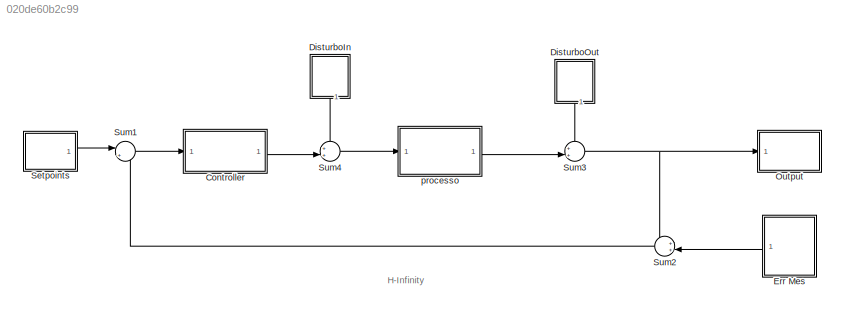
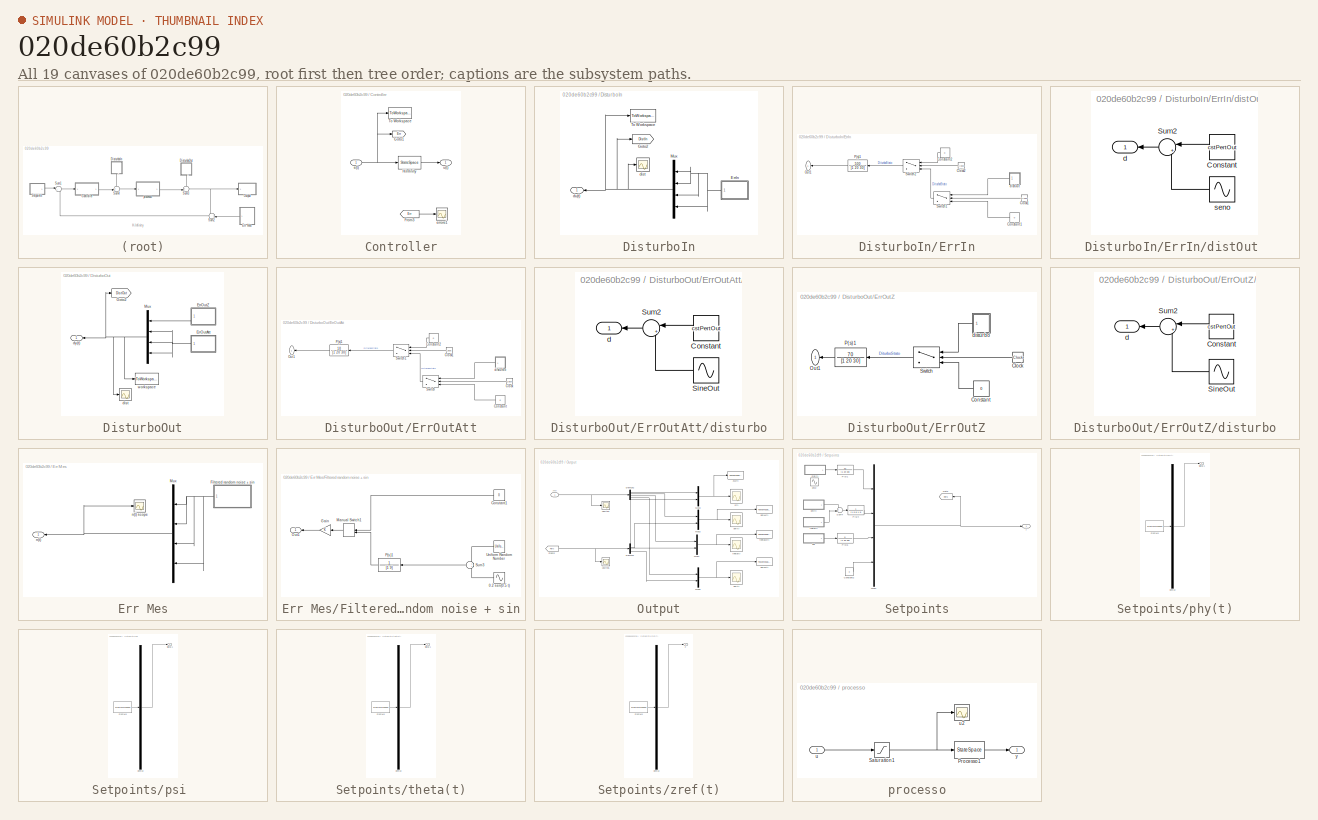
[diagram: thumbnail index - all 19 canvases of the model, root first then tree order]
MODEL slx_020de60b2c99
KIND model
CONFIG AbsTol = auto
CONFIG EnableMultiTasking = on
CONFIG FixedStep = auto
CONFIG MaxStep = auto
CONFIG MinStep = auto
CONFIG RelTol = 1e-3
CONFIG SampleTimeConstraint = Unconstrained
CONFIG Solver = ode23
CONFIG SolverName = ode23
CONFIG StartTime = 0.0
CONFIG StopTime = 15
BLOCK [SubSystem] Controller
  Ports = [1, 1]
  RequestExecContextInheritance = off
  Variant = off
BLOCK [From] Controller/From3
  GotoTag = Err
  TagVisibility = global
BLOCK [Goto] Controller/Goto1
  GotoTag = Err
  TagVisibility = global
BLOCK [StateSpace] Controller/H-Infinity
  A = Kinf.a
  B = Kinf.b
  C = Kinf.c
  D = Kinf.d
  Ports = [1, 1]
  X0 = 0
BLOCK [ToWorkspace] Controller/To Workspace
  MaxDataPoints = inf
  Ports = [1]
  SampleTime = -1
  SaveFormat = Structure
  VariableName = errSim
BLOCK [Inport] Controller/e(t)
  IconDisplay = Port number
BLOCK [Scope] Controller/errore1
  NumInputPorts = 1
  Ports = [1]
  ScopeSpecificationString = C++SS(StrPVP('Location','[66, 91, 1066, 623]'),StrPVP('Open','off'),StrPVP('ZoomMode','xonly'),MxPVP('AxesTitles',53,'struct(''axes1'',''%<SignalLabel>'')'),MxPVP('ScopeGraphics',56,'struct(''FigureColor'',''[0.5 0.5 0.5]'',''AxesColor'',''[0 0 0]'',''AxesTickColor'',''[1 1 1]'',''LineColors'',''[1 1 0;1 0 1;0 1 1;1 0 0;0 1 0;0 0 1]'',''LineStyles'',''-|-|-|-|-|-'',''LineWidths'',''[0.5 0.5 0.5 0....<+337ch>
BLOCK [Outport] Controller/u(t)
  IconDisplay = Port number
BLOCK [SubSystem] DisturboIn
  Ports = [0, 1]
  RequestExecContextInheritance = off
  Variant = off
BLOCK [SubSystem] DisturboIn/ErrIn
  Ports = [0, 1]
  RequestExecContextInheritance = off
  Variant = off
BLOCK [Clock] DisturboIn/ErrIn/Clock1
BLOCK [Clock] DisturboIn/ErrIn/Clock2
BLOCK [Constant] DisturboIn/ErrIn/Constant1
  Value = 0
BLOCK [Constant] DisturboIn/ErrIn/Constant2
  Value = 0
BLOCK [Outport] DisturboIn/ErrIn/Out1
  IconDisplay = Port number
BLOCK [TransferFcn] DisturboIn/ErrIn/P(s)1
  Denominator = [1 20 30]
  Numerator = 500
BLOCK [Switch] DisturboIn/ErrIn/Switch1
  InputSameDT = off
  SaturateOnIntegerOverflow = off
  Threshold = 2
BLOCK [Switch] DisturboIn/ErrIn/Switch2
  InputSameDT = off
  SaturateOnIntegerOverflow = off
  Threshold = 5
BLOCK [SubSystem] DisturboIn/ErrIn/distOut 
  Ports = [0, 1]
  RequestExecContextInheritance = off
  Variant = off
BLOCK [Constant] DisturboIn/ErrIn/distOut /Constant
  Value = cstPertOut
BLOCK [Sum] DisturboIn/ErrIn/distOut /Sum2
  IconShape = round
  InputSameDT = off
  Inputs = |++
  OutDataTypeStr = Inherit: Inherit via internal rule
  Ports = [2, 1]
  SaturateOnIntegerOverflow = off
BLOCK [Outport] DisturboIn/ErrIn/distOut /d
  IconDisplay = Port number
BLOCK [Sin] DisturboIn/ErrIn/distOut /seno
  Amplitude = 1000
  Frequency = omegaPertOut
  Ports = [0, 1]
  SampleTime = 0
BLOCK [Goto] DisturboIn/Goto2
  GotoTag = DistIn
  TagVisibility = global
BLOCK [Mux] DisturboIn/Mux
  DisplayOption = bar
  Inputs = [1 1 1 1]
  Ports = [4, 1]
BLOCK [ToWorkspace] DisturboIn/To Workspace
  FixptAsFi = on
  MaxDataPoints = inf
  Ports = [1]
  SampleTime = -1
  Save2DSignal = 3-D array (concatenate along third dimension)
  SaveFormat = Timeseries
  VariableName = distIn
BLOCK [Scope] DisturboIn/dist
  NumInputPorts = 1
  Ports = [1]
  ScopeSpecificationString = C++SS(StrPVP('Location','[76, 91, 1327, 767]'),StrPVP('Open','off'),MxPVP('AxesTitles',53,'struct(''axes1'',''%<SignalLabel>'')'),MxPVP('ScopeGraphics',56,'struct(''FigureColor'',''[0.5 0.5 0.5]'',''AxesColor'',''[0 0 0]'',''AxesTickColor'',''[1 1 1]'',''LineColors'',''[1 1 0;1 0 1;0 1 1;1 0 0;0 1 0;0 0 1]'',''LineStyles'',''-|-|-|-|-|-'',''LineWidths'',''[0.5 0.5 0.5 0.5 0.5 0.5]'',''MarkerStyles...<+286ch>
BLOCK [Outport] DisturboIn/du(t)
  IconDisplay = Port number
BLOCK [SubSystem] DisturboOut
  Ports = [0, 1]
  RequestExecContextInheritance = off
  Variant = off
BLOCK [SubSystem] DisturboOut/ErrOutAtt
  Ports = [0, 1]
  RequestExecContextInheritance = off
  Variant = off
BLOCK [Clock] DisturboOut/ErrOutAtt/Clock
BLOCK [Clock] DisturboOut/ErrOutAtt/Clock1
BLOCK [Constant] DisturboOut/ErrOutAtt/Constant
  Value = 0
BLOCK [Constant] DisturboOut/ErrOutAtt/Constant2
  Value = 0
BLOCK [Outport] DisturboOut/ErrOutAtt/Out1
  IconDisplay = Port number
BLOCK [TransferFcn] DisturboOut/ErrOutAtt/P(s)1
  Denominator = [1 20 30]
  Numerator = 10
BLOCK [Switch] DisturboOut/ErrOutAtt/Switch
  InputSameDT = off
  SaturateOnIntegerOverflow = off
  Threshold = 3
BLOCK [Switch] DisturboOut/ErrOutAtt/Switch1
  InputSameDT = off
  SaturateOnIntegerOverflow = off
  Threshold = 5
BLOCK [SubSystem] DisturboOut/ErrOutAtt/disturbo
  Ports = [0, 1]
  RequestExecContextInheritance = off
  Variant = off
BLOCK [Constant] DisturboOut/ErrOutAtt/disturbo/Constant
  Value = cstPertOut
BLOCK [Sin] DisturboOut/ErrOutAtt/disturbo/SineOut
  Amplitude = amplitudePertOutptp
  Frequency = omegaPertOut
  Ports = [0, 1]
  SampleTime = 0
BLOCK [Sum] DisturboOut/ErrOutAtt/disturbo/Sum2
  IconShape = round
  InputSameDT = off
  Inputs = |++
  OutDataTypeStr = Inherit: Inherit via internal rule
  Ports = [2, 1]
  SaturateOnIntegerOverflow = off
BLOCK [Outport] DisturboOut/ErrOutAtt/disturbo/d
  IconDisplay = Port number
BLOCK [SubSystem] DisturboOut/ErrOutZ
  Ports = [0, 1]
  RequestExecContextInheritance = off
  Variant = off
BLOCK [Clock] DisturboOut/ErrOutZ/Clock
BLOCK [Constant] DisturboOut/ErrOutZ/Constant
  Value = 0
BLOCK [Outport] DisturboOut/ErrOutZ/Out1
  IconDisplay = Port number
BLOCK [TransferFcn] DisturboOut/ErrOutZ/P(s)1
  Denominator = [1 20 30]
  Numerator = 70
BLOCK [Switch] DisturboOut/ErrOutZ/Switch
  InputSameDT = off
  SaturateOnIntegerOverflow = off
  Threshold = 3
BLOCK [SubSystem] DisturboOut/ErrOutZ/disturbo
  Ports = [0, 1]
  RequestExecContextInheritance = off
  Variant = off
BLOCK [Constant] DisturboOut/ErrOutZ/disturbo/Constant
  Value = cstPertOut
BLOCK [Sin] DisturboOut/ErrOutZ/disturbo/SineOut
  Amplitude = amplitudePertOutZ
  Frequency = omegaPertOut
  Ports = [0, 1]
  SampleTime = 0
BLOCK [Sum] DisturboOut/ErrOutZ/disturbo/Sum2
  IconShape = round
  InputSameDT = off
  Inputs = |++
  OutDataTypeStr = Inherit: Inherit via internal rule
  Ports = [2, 1]
  SaturateOnIntegerOverflow = off
BLOCK [Outport] DisturboOut/ErrOutZ/disturbo/d
  IconDisplay = Port number
BLOCK [Goto] DisturboOut/Goto2
  GotoTag = DistOut
  TagVisibility = global
BLOCK [Mux] DisturboOut/Mux
  DisplayOption = bar
  Inputs = [1 1 1 1]
  Ports = [4, 1]
BLOCK [Scope] DisturboOut/dist
  NumInputPorts = 1
  Ports = [1]
  ScopeSpecificationString = C++SS(StrPVP('Location','[66, 127, 1357, 755]'),StrPVP('Open','off'),MxPVP('AxesTitles',53,'struct(''axes1'',''%<SignalLabel>'')'),MxPVP('ScopeGraphics',56,'struct(''FigureColor'',''[0.5 0.5 0.5]'',''AxesColor'',''[0 0 0]'',''AxesTickColor'',''[1 1 1]'',''LineColors'',''[1 1 0;1 0 1;0 1 1;1 0 0;0 1 0;0 0 1]'',''LineStyles'',''-|-|-|-|-|-'',''LineWidths'',''[0.5 0.5 0.5 0.5 0.5 0.5]'',''MarkerStyle...<+283ch>
BLOCK [Outport] DisturboOut/dy(t) 
  IconDisplay = Port number
BLOCK [ToWorkspace] DisturboOut/workspace 
  FixptAsFi = on
  MaxDataPoints = inf
  Ports = [1]
  SampleTime = -1
  Save2DSignal = 3-D array (concatenate along third dimension)
  SaveFormat = Timeseries
  VariableName = distOut
BLOCK [SubSystem] Err Mes
  Ports = [0, 1]
  RequestExecContextInheritance = off
  Variant = off
BLOCK [SubSystem] Err Mes/Filtered random noise + sin
  Ports = [0, 1]
  RequestExecContextInheritance = off
  Variant = off
BLOCK [Sin] Err Mes/Filtered random noise + sin/0.2 sen(0.5 t)
  Amplitude = amplitudeNoise
  Frequency = omegaNoise
  Phase = 1
  Ports = [0, 1]
  SampleTime = 0
BLOCK [Constant] Err Mes/Filtered random noise + sin/Constant1
  Value = 0
BLOCK [Gain] Err Mes/Filtered random noise + sin/Gain
  OutDataTypeStr = Inherit: Inherit via internal rule
  ParamDataTypeStr = Inherit: Inherit via internal rule
  SaturateOnIntegerOverflow = off
BLOCK [ManualSwitch] Err Mes/Filtered random noise + sin/Manual Switch1
BLOCK [Outport] Err Mes/Filtered random noise + sin/Out1
  IconDisplay = Port number
BLOCK [TransferFcn] Err Mes/Filtered random noise + sin/P(s)1
  Denominator = [1 9]
  Numerator = 1
BLOCK [Sum] Err Mes/Filtered random noise + sin/Sum3
  IconShape = round
  InputSameDT = off
  OutDataTypeStr = Inherit: Inherit via internal rule
  Ports = [2, 1]
  SaturateOnIntegerOverflow = off
BLOCK [UniformRandomNumber] Err Mes/Filtered random noise + sin/Uniform Random Number
  Maximum = randomAmpNoise
  Minimum = -randomAmpNoise
  SampleTime = 0.1
BLOCK [Mux] Err Mes/Mux
  DisplayOption = bar
  Inputs = [1 1 1 1]
  Ports = [4, 1]
BLOCK [Outport] Err Mes/n(t)
  IconDisplay = Port number
BLOCK [Scope] Err Mes/n(t) scope
  NumInputPorts = 1
  Ports = [1]
  ScopeSpecificationString = C++SS(StrPVP('Location','[76, 83, 1357, 767]'),StrPVP('Open','off'),MxPVP('AxesTitles',53,'struct(''axes1'',''%<SignalLabel>'')'),MxPVP('ScopeGraphics',56,'struct(''FigureColor'',''[0.5 0.5 0.5]'',''AxesColor'',''[0 0 0]'',''AxesTickColor'',''[1 1 1]'',''LineColors'',''[1 1 0;1 0 1;0 1 1;1 0 0;0 1 0;0 0 1]'',''LineStyles'',''-|-|-|-|-|-'',''LineWidths'',''[0.5 0.5 0.5 0.5 0.5 0.5]'',''MarkerStyles...<+289ch>
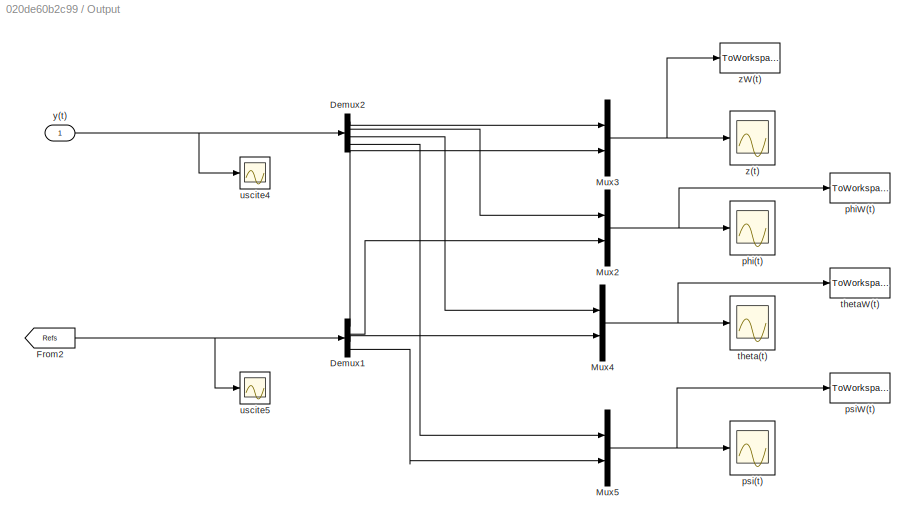
BLOCK [SubSystem] Output
  Ports = [1]
  RequestExecContextInheritance = off
  Variant = off
BLOCK [Demux] Output/Demux1
  DisplayOption = bar
  Ports = [1, 4]
BLOCK [Demux] Output/Demux2
  DisplayOption = bar
  Ports = [1, 4]
BLOCK [From] Output/From2
  GotoTag = Refs
  TagVisibility = global
BLOCK [Mux] Output/Mux2
  DisplayOption = bar
  Inputs = 2
  Ports = [2, 1]
BLOCK [Mux] Output/Mux3
  DisplayOption = bar
  Inputs = 2
  Ports = [2, 1]
BLOCK [Mux] Output/Mux4
  DisplayOption = bar
  Inputs = 2
  Ports = [2, 1]
BLOCK [Mux] Output/Mux5
  DisplayOption = bar
  Inputs = 2
  Ports = [2, 1]
BLOCK [Scope] Output/phi(t)
  NumInputPorts = 1
  Ports = [1]
  ScopeSpecificationString = Simulink.scopes.TimeScopeBlockCfg('CurrentConfiguration', extmgr.ConfigurationSet(extmgr.Configuration('Core','General UI',true),extmgr.Configuration('Core','Source UI',true),extmgr.Configuration('Sources','WiredSimulink',true,'DataLoggingVariableName','ScopeData4','DataLoggingSaveFormat','StructureWithTime','DataLoggingDecimation','1','DataLoggingDecimateData',true),extmgr.Configuration('Visuals'...<+1804ch>
BLOCK [ToWorkspace] Output/phiW(t)
  FixptAsFi = on
  MaxDataPoints = inf
  Ports = [1]
  SampleTime = -1
  Save2DSignal = 3-D array (concatenate along third dimension)
  SaveFormat = Timeseries
  VariableName = phiHinf
BLOCK [Scope] Output/psi(t)
  NumInputPorts = 1
  Ports = [1]
  ScopeSpecificationString = Simulink.scopes.TimeScopeBlockCfg('CurrentConfiguration', extmgr.ConfigurationSet(extmgr.Configuration('Core','General UI',true),extmgr.Configuration('Core','Source UI',true),extmgr.Configuration('Sources','WiredSimulink',true,'DataLoggingVariableName','ScopeData7','DataLoggingSaveFormat','StructureWithTime','DataLoggingDecimation','1','DataLoggingDecimateData',true),extmgr.Configuration('Visuals'...<+1723ch>
BLOCK [ToWorkspace] Output/psiW(t)
  FixptAsFi = on
  MaxDataPoints = inf
  Ports = [1]
  SampleTime = -1
  Save2DSignal = 3-D array (concatenate along third dimension)
  SaveFormat = Timeseries
  VariableName = psiHinf
BLOCK [Scope] Output/theta(t)
  NumInputPorts = 1
  Ports = [1]
  ScopeSpecificationString = Simulink.scopes.TimeScopeBlockCfg('CurrentConfiguration', extmgr.ConfigurationSet(extmgr.Configuration('Core','General UI',true),extmgr.Configuration('Core','Source UI',true),extmgr.Configuration('Sources','WiredSimulink',true,'DataLoggingVariableName','ScopeData6','DataLoggingSaveFormat','StructureWithTime','DataLoggingDecimation','1','DataLoggingDecimateData',true),extmgr.Configuration('Visuals'...<+1727ch>
BLOCK [ToWorkspace] Output/thetaW(t)
  FixptAsFi = on
  MaxDataPoints = inf
  Ports = [1]
  SampleTime = -1
  Save2DSignal = 3-D array (concatenate along third dimension)
  SaveFormat = Timeseries
  VariableName = thetaHinf
BLOCK [Scope] Output/uscite4
  NumInputPorts = 1
  Ports = [1]
  ScopeSpecificationString = C++SS(StrPVP('Location','[76, 91, 1096, 627]'),StrPVP('Open','off'),MxPVP('AxesTitles',53,'struct(''axes1'',''%<SignalLabel>'')'),MxPVP('ScopeGraphics',56,'struct(''FigureColor'',''[0.5 0.5 0.5]'',''AxesColor'',''[0 0 0]'',''AxesTickColor'',''[1 1 1]'',''LineColors'',''[1 1 0;1 0 1;0 1 1;1 0 0;0 1 0;0 0 1]'',''LineStyles'',''-|-|-|-|-|-'',''LineWidths'',''[0.5 0.5 0.5 0.5 0.5 0.5]'',''MarkerStyles...<+312ch>
BLOCK [Scope] Output/uscite5
  NumInputPorts = 1
  Ports = [1]
  ScopeSpecificationString = C++SS(StrPVP('Location','[76, 81, 1076, 613]'),StrPVP('Open','off'),MxPVP('AxesTitles',53,'struct(''axes1'',''%<SignalLabel>'')'),MxPVP('ScopeGraphics',56,'struct(''FigureColor'',''[0.5 0.5 0.5]'',''AxesColor'',''[0 0 0]'',''AxesTickColor'',''[1 1 1]'',''LineColors'',''[1 1 0;1 0 1;0 1 1;1 0 0;0 1 0;0 0 1]'',''LineStyles'',''-|-|-|-|-|-'',''LineWidths'',''[0.5 0.5 0.5 0.5 0.5 0.5]'',''MarkerStyles...<+312ch>
BLOCK [Inport] Output/y(t)
  IconDisplay = Port number
BLOCK [Scope] Output/z(t)
  NumInputPorts = 1
  Ports = [1]
  ScopeSpecificationString = Simulink.scopes.TimeScopeBlockCfg('CurrentConfiguration', extmgr.ConfigurationSet(extmgr.Configuration('Core','General UI',true,'FigureColor',[0.501960784313725 0.501960784313725 0.501960784313725]),extmgr.Configuration('Core','Source UI',true),extmgr.Configuration('Sources','WiredSimulink',true,'DataLoggingSaveFormat','StructureWithTime','DataLoggingDecimation','1','DataLoggingDecimateData',true)...<+2798ch>
BLOCK [ToWorkspace] Output/zW(t)
  FixptAsFi = on
  MaxDataPoints = inf
  Ports = [1]
  SampleTime = -1
  Save2DSignal = 3-D array (concatenate along third dimension)
  SaveFormat = Structure With Time
  VariableName = ztHinf
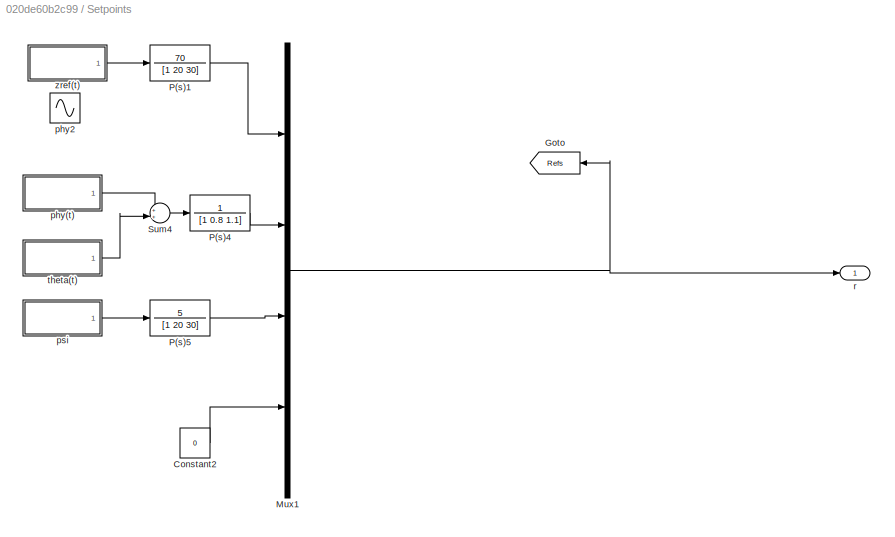
BLOCK [SubSystem] Setpoints
  Ports = [0, 1]
  RequestExecContextInheritance = off
  Variant = off
BLOCK [Constant] Setpoints/Constant2
  Value = 0
BLOCK [Goto] Setpoints/Goto
  GotoTag = Refs
  TagVisibility = global
BLOCK [Mux] Setpoints/Mux1
  DisplayOption = bar
  Inputs = [1 1 1 1]
  Ports = [4, 1]
BLOCK [TransferFcn] Setpoints/P(s)1
  Denominator = [1 20 30]
  Numerator = 70
BLOCK [TransferFcn] Setpoints/P(s)4
  Denominator = [1 0.8 1.1]
  Numerator = 1
BLOCK [TransferFcn] Setpoints/P(s)5
  Denominator = [1 20 30]
  Numerator = 5
BLOCK [Sum] Setpoints/Sum4
  IconShape = round
  InputSameDT = off
  Inputs = ++|
  OutDataTypeStr = Inherit: Inherit via internal rule
  Ports = [2, 1]
  SaturateOnIntegerOverflow = off
BLOCK [SubSystem] Setpoints/phy(t)
  ClipboardFcn = sigbuilder_block('clipboard');
  CloseFcn = sigbuilder_block('close');
  ContinueFcn = sigbuilder_block('continue');
  CopyFcn = sigbuilder_block('copy');
  DeleteFcn = sigbuilder_block('delete');
  LoadFcn = sigbuilder_block('load');
  MaskHideContents = on
  ModelCloseFcn = sigbuilder_block('modelClose');
  NameChangeFcn = sigbuilder_block('namechange');
  OpenFcn = sigbuilder_block('open',[341.6 120.8 550.4 400 ]);
  PauseFcn = sigbuilder_block('pause');
  Ports = [0, 1]
  PreSaveFcn = sigbuilder_block('preSave');
  RequestExecContextInheritance = off
  StartFcn = sigbuilder_block('start');
  StopFcn = sigbuilder_block('stop');
  Tag = STV Subsys
  Variant = off
BLOCK [Demux] Setpoints/phy(t)/Demux
  Outputs = 1
  Ports = [1, 1]
  Tag = STV Demux
BLOCK [FromWorkspace] Setpoints/phy(t)/FromWs
  SampleTime = 0
  Tag = STV FromWs
  VariableName = tuvar
  ZeroCross = on
BLOCK [Outport] Setpoints/phy(t)/Signal 1
  IconDisplay = Port number
  Tag = STV Outport
BLOCK [Sin] Setpoints/phy2
  Amplitude = 10
  Frequency = 0.2
  Ports = [0, 1]
  SampleTime = 0
BLOCK [SubSystem] Setpoints/psi 
  ClipboardFcn = sigbuilder_block('clipboard');
  CloseFcn = sigbuilder_block('close');
  ContinueFcn = sigbuilder_block('continue');
  CopyFcn = sigbuilder_block('copy');
  DeleteFcn = sigbuilder_block('delete');
  LoadFcn = sigbuilder_block('load');
  MaskHideContents = on
  ModelCloseFcn = sigbuilder_block('modelClose');
  NameChangeFcn = sigbuilder_block('namechange');
  OpenFcn = sigbuilder_block('open',[341.6 120.8 550.4 400 ]);
  PauseFcn = sigbuilder_block('pause');
  Ports = [0, 1]
  PreSaveFcn = sigbuilder_block('preSave');
  RequestExecContextInheritance = off
  StartFcn = sigbuilder_block('start');
  StopFcn = sigbuilder_block('stop');
  Tag = STV Subsys
  Variant = off
BLOCK [Demux] Setpoints/psi /Demux
  Outputs = 1
  Ports = [1, 1]
  Tag = STV Demux
BLOCK [FromWorkspace] Setpoints/psi /FromWs
  SampleTime = 0
  Tag = STV FromWs
  VariableName = tuvar
  ZeroCross = on
BLOCK [Outport] Setpoints/psi /Signal 1
  IconDisplay = Port number
  Tag = STV Outport
BLOCK [Outport] Setpoints/r
  IconDisplay = Port number
BLOCK [SubSystem] Setpoints/theta(t)
  ClipboardFcn = sigbuilder_block('clipboard');
  CloseFcn = sigbuilder_block('close');
  ContinueFcn = sigbuilder_block('continue');
  CopyFcn = sigbuilder_block('copy');
  DeleteFcn = sigbuilder_block('delete');
  LoadFcn = sigbuilder_block('load');
  MaskHideContents = on
  ModelCloseFcn = sigbuilder_block('modelClose');
  NameChangeFcn = sigbuilder_block('namechange');
  OpenFcn = sigbuilder_block('open',[341.6 120.8 550.4 400 ]);
  PauseFcn = sigbuilder_block('pause');
  Ports = [0, 1]
  PreSaveFcn = sigbuilder_block('preSave');
  RequestExecContextInheritance = off
  StartFcn = sigbuilder_block('start');
  StopFcn = sigbuilder_block('stop');
  Tag = STV Subsys
  Variant = off
BLOCK [Demux] Setpoints/theta(t)/Demux
  Outputs = 1
  Ports = [1, 1]
  Tag = STV Demux
BLOCK [FromWorkspace] Setpoints/theta(t)/FromWs
  SampleTime = 0
  Tag = STV FromWs
  VariableName = tuvar
  ZeroCross = on
BLOCK [Outport] Setpoints/theta(t)/Signal 1
  IconDisplay = Port number
  Tag = STV Outport
BLOCK [SubSystem] Setpoints/zref(t)
  ClipboardFcn = sigbuilder_block('clipboard');
  CloseFcn = sigbuilder_block('close');
  ContinueFcn = sigbuilder_block('continue');
  CopyFcn = sigbuilder_block('copy');
  DeleteFcn = sigbuilder_block('delete');
  LoadFcn = sigbuilder_block('load');
  MaskHideContents = on
  ModelCloseFcn = sigbuilder_block('modelClose');
  NameChangeFcn = sigbuilder_block('namechange');
  OpenFcn = sigbuilder_block('open',[341.6 120.8 550.4 400 ]);
  PauseFcn = sigbuilder_block('pause');
  Ports = [0, 1]
  PreSaveFcn = sigbuilder_block('preSave');
  RequestExecContextInheritance = off
  StartFcn = sigbuilder_block('start');
  StopFcn = sigbuilder_block('stop');
  Tag = STV Subsys
  Variant = off
BLOCK [Demux] Setpoints/zref(t)/Demux
  Outputs = 1
  Ports = [1, 1]
  Tag = STV Demux
BLOCK [FromWorkspace] Setpoints/zref(t)/FromWs
  SampleTime = 0
  Tag = STV FromWs
  VariableName = tuvar
  ZeroCross = on
BLOCK [Outport] Setpoints/zref(t)/Z
  IconDisplay = Port number
  Tag = STV Outport
BLOCK [Sum] Sum1
  IconShape = round
  InputSameDT = off
  Inputs = |+-
  OutDataTypeStr = Inherit: Inherit via internal rule
  Ports = [2, 1]
  SaturateOnIntegerOverflow = off
BLOCK [Sum] Sum2
  IconShape = round
  InputSameDT = off
  Inputs = ++|
  OutDataTypeStr = Inherit: Inherit via internal rule
  Ports = [2, 1]
  SaturateOnIntegerOverflow = off
BLOCK [Sum] Sum3
  IconShape = round
  InputSameDT = off
  Inputs = ++|
  OutDataTypeStr = Inherit: Inherit via internal rule
  Ports = [2, 1]
  SaturateOnIntegerOverflow = off
BLOCK [Sum] Sum4
  IconShape = round
  InputSameDT = off
  Inputs = ++|
  OutDataTypeStr = Inherit: Inherit via internal rule
  Ports = [2, 1]
  SaturateOnIntegerOverflow = off
BLOCK [SubSystem] processo
  Ports = [1, 1]
  RequestExecContextInheritance = off
  Variant = off
BLOCK [StateSpace] processo/Processo1
  A = A0
  B = B0
  C = C0
  D = D0
  Ports = [1, 1]
  X0 = 0
BLOCK [Saturate] processo/Saturation1
  InputPortMap = u0
  LowerLimit = -17000
  Ports = [1, 1]
  UpperLimit = 17000
BLOCK [Inport] processo/u
  IconDisplay = Port number
BLOCK [Scope] processo/u2
  NumInputPorts = 1
  Ports = [1]
  ScopeSpecificationString = Simulink.scopes.TimeScopeBlockCfg('CurrentConfiguration', extmgr.ConfigurationSet(extmgr.Configuration('Core','General UI',true),extmgr.Configuration('Core','Source UI',true),extmgr.Configuration('Sources','WiredSimulink',true,'DataLoggingVariableName','ScopeData10','DataLoggingSaveFormat','StructureWithTime','DataLoggingDecimation','1','DataLoggingDecimateData',true),extmgr.Configuration('Visuals...<+1790ch>
BLOCK [Outport] processo/y
  IconDisplay = Port number
ANNOTATION (root): H-Infinity
LINE Controller/From3:1 -> Controller/errore1:1
LINE Controller/H-Infinity:1 -> Controller/u(t):1
NET Controller/e(t):1 -> Controller/Goto1:1, Controller/H-Infinity:1, Controller/To Workspace:1
LINE Controller:1 -> Sum4:2
LINE DisturboIn/ErrIn/Clock1:1 -> DisturboIn/ErrIn/Switch1:2
LINE DisturboIn/ErrIn/Clock2:1 -> DisturboIn/ErrIn/Switch2:2
LINE DisturboIn/ErrIn/Constant1:1 -> DisturboIn/ErrIn/Switch1:3
LINE DisturboIn/ErrIn/Constant2:1 -> DisturboIn/ErrIn/Switch2:1
LINE DisturboIn/ErrIn/P(s)1:1 -> DisturboIn/ErrIn/Out1:1
LINE DisturboIn/ErrIn/Switch1:1 -> DisturboIn/ErrIn/Switch2:3
LINE DisturboIn/ErrIn/Switch2:1 -> DisturboIn/ErrIn/P(s)1:1
LINE DisturboIn/ErrIn/distOut /Constant:1 -> DisturboIn/ErrIn/distOut /Sum2:1
LINE DisturboIn/ErrIn/distOut /Sum2:1 -> DisturboIn/ErrIn/distOut /d:1
LINE DisturboIn/ErrIn/distOut /seno:1 -> DisturboIn/ErrIn/distOut /Sum2:2
LINE DisturboIn/ErrIn/distOut :1 -> DisturboIn/ErrIn/Switch1:1
NET DisturboIn/ErrIn:1 -> DisturboIn/Mux:1, DisturboIn/Mux:2, DisturboIn/Mux:3, DisturboIn/Mux:4
NET DisturboIn/Mux:1 -> DisturboIn/Goto2:1, DisturboIn/To Workspace:1, DisturboIn/dist:1, DisturboIn/du(t):1
LINE DisturboIn:1 -> Sum4:1
LINE DisturboOut/ErrOutAtt/Clock1:1 -> DisturboOut/ErrOutAtt/Switch1:2
LINE DisturboOut/ErrOutAtt/Clock:1 -> DisturboOut/ErrOutAtt/Switch:2
LINE DisturboOut/ErrOutAtt/Constant2:1 -> DisturboOut/ErrOutAtt/Switch1:1
LINE DisturboOut/ErrOutAtt/Constant:1 -> DisturboOut/ErrOutAtt/Switch:3
LINE DisturboOut/ErrOutAtt/P(s)1:1 -> DisturboOut/ErrOutAtt/Out1:1
LINE DisturboOut/ErrOutAtt/Switch1:1 -> DisturboOut/ErrOutAtt/P(s)1:1
LINE DisturboOut/ErrOutAtt/Switch:1 -> DisturboOut/ErrOutAtt/Switch1:3
LINE DisturboOut/ErrOutAtt/disturbo/Constant:1 -> DisturboOut/ErrOutAtt/disturbo/Sum2:1
LINE DisturboOut/ErrOutAtt/disturbo/SineOut:1 -> DisturboOut/ErrOutAtt/disturbo/Sum2:2
LINE DisturboOut/ErrOutAtt/disturbo/Sum2:1 -> DisturboOut/ErrOutAtt/disturbo/d:1
LINE DisturboOut/ErrOutAtt/disturbo:1 -> DisturboOut/ErrOutAtt/Switch:1
NET DisturboOut/ErrOutAtt:1 -> DisturboOut/Mux:2, DisturboOut/Mux:3, DisturboOut/Mux:4
LINE DisturboOut/ErrOutZ/Clock:1 -> DisturboOut/ErrOutZ/Switch:2
LINE DisturboOut/ErrOutZ/Constant:1 -> DisturboOut/ErrOutZ/Switch:3
LINE DisturboOut/ErrOutZ/P(s)1:1 -> DisturboOut/ErrOutZ/Out1:1
LINE DisturboOut/ErrOutZ/Switch:1 -> DisturboOut/ErrOutZ/P(s)1:1
LINE DisturboOut/ErrOutZ/disturbo/Constant:1 -> DisturboOut/ErrOutZ/disturbo/Sum2:1
LINE DisturboOut/ErrOutZ/disturbo/SineOut:1 -> DisturboOut/ErrOutZ/disturbo/Sum2:2
LINE DisturboOut/ErrOutZ/disturbo/Sum2:1 -> DisturboOut/ErrOutZ/disturbo/d:1
LINE DisturboOut/ErrOutZ/disturbo:1 -> DisturboOut/ErrOutZ/Switch:1
LINE DisturboOut/ErrOutZ:1 -> DisturboOut/Mux:1
NET DisturboOut/Mux:1 -> DisturboOut/Goto2:1, DisturboOut/dist:1, DisturboOut/dy(t) :1, DisturboOut/workspace :1
LINE DisturboOut:1 -> Sum3:1
LINE Err Mes/Filtered random noise + sin/0.2 sen(0.5 t):1 -> Err Mes/Filtered random noise + sin/Sum3:2
LINE Err Mes/Filtered random noise + sin/Constant1:1 -> Err Mes/Filtered random noise + sin/Manual Switch1:1
LINE Err Mes/Filtered random noise + sin/Gain:1 -> Err Mes/Filtered random noise + sin/Out1:1
LINE Err Mes/Filtered random noise + sin/Manual Switch1:1 -> Err Mes/Filtered random noise + sin/Gain:1
LINE Err Mes/Filtered random noise + sin/P(s)1:1 -> Err Mes/Filtered random noise + sin/Manual Switch1:2
LINE Err Mes/Filtered random noise + sin/Sum3:1 -> Err Mes/Filtered random noise + sin/P(s)1:1
LINE Err Mes/Filtered random noise + sin/Uniform Random Number:1 -> Err Mes/Filtered random noise + sin/Sum3:1
NET Err Mes/Filtered random noise + sin:1 -> Err Mes/Mux:1, Err Mes/Mux:2, Err Mes/Mux:3, Err Mes/Mux:4
NET Err Mes/Mux:1 -> Err Mes/n(t) scope:1, Err Mes/n(t):1
LINE Err Mes:1 -> Sum2:2
LINE Output/Demux1:1 -> Output/Mux3:2
LINE Output/Demux1:2 -> Output/Mux2:2
LINE Output/Demux1:3 -> Output/Mux4:2
LINE Output/Demux1:4 -> Output/Mux5:2
LINE Output/Demux2:1 -> Output/Mux3:1
LINE Output/Demux2:2 -> Output/Mux2:1
LINE Output/Demux2:3 -> Output/Mux4:1
LINE Output/Demux2:4 -> Output/Mux5:1
NET Output/From2:1 -> Output/Demux1:1, Output/uscite5:1
NET Output/Mux2:1 -> Output/phi(t):1, Output/phiW(t):1
NET Output/Mux3:1 -> Output/z(t):1, Output/zW(t):1
NET Output/Mux4:1 -> Output/theta(t):1, Output/thetaW(t):1
NET Output/Mux5:1 -> Output/psi(t):1, Output/psiW(t):1
NET Output/y(t):1 -> Output/Demux2:1, Output/uscite4:1
LINE Setpoints/Constant2:1 -> Setpoints/Mux1:4
NET Setpoints/Mux1:1 -> Setpoints/Goto:1, Setpoints/r:1
LINE Setpoints/P(s)1:1 -> Setpoints/Mux1:1
LINE Setpoints/P(s)4:1 -> Setpoints/Mux1:2
LINE Setpoints/P(s)5:1 -> Setpoints/Mux1:3
LINE Setpoints/Sum4:1 -> Setpoints/P(s)4:1
LINE Setpoints/phy(t):1 -> Setpoints/Sum4:1
LINE Setpoints/psi :1 -> Setpoints/P(s)5:1
LINE Setpoints/theta(t):1 -> Setpoints/Sum4:2
LINE Setpoints/zref(t):1 -> Setpoints/P(s)1:1
LINE Setpoints:1 -> Sum1:1
LINE Sum1:1 -> Controller:1
LINE Sum2:1 -> Sum1:2
NET Sum3:1 -> Output:1, Sum2:1
LINE Sum4:1 -> processo:1
LINE processo/Processo1:1 -> processo/y:1
NET processo/Saturation1:1 -> processo/Processo1:1, processo/u2:1
LINE processo/u:1 -> processo/Saturation1:1
LINE processo:1 -> Sum3:2
note: NET lines group one-source signal fan-out (src -> all destinations, sorted); 1:1 wires keep LINE
